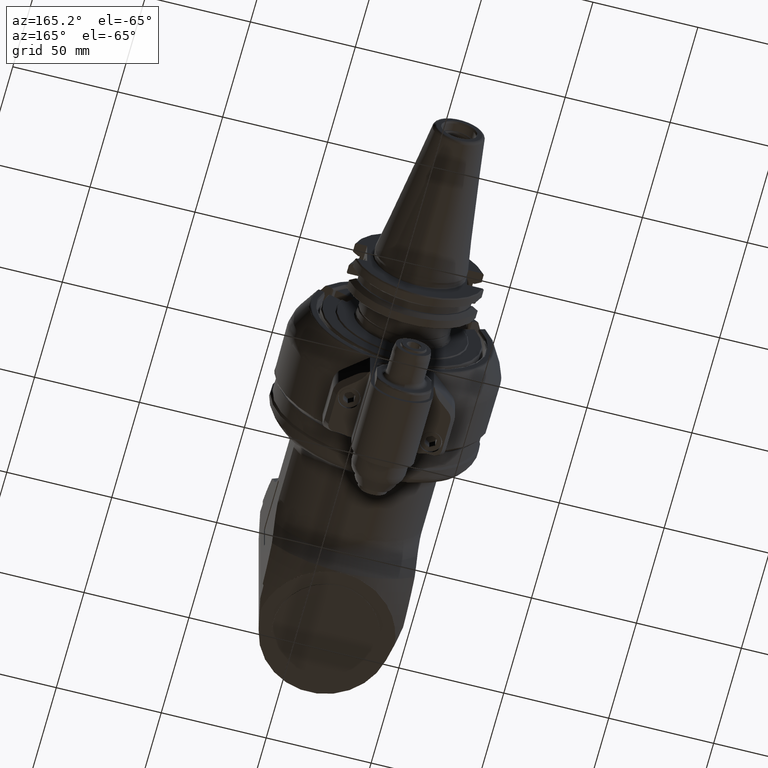
[diagram: clean part render]
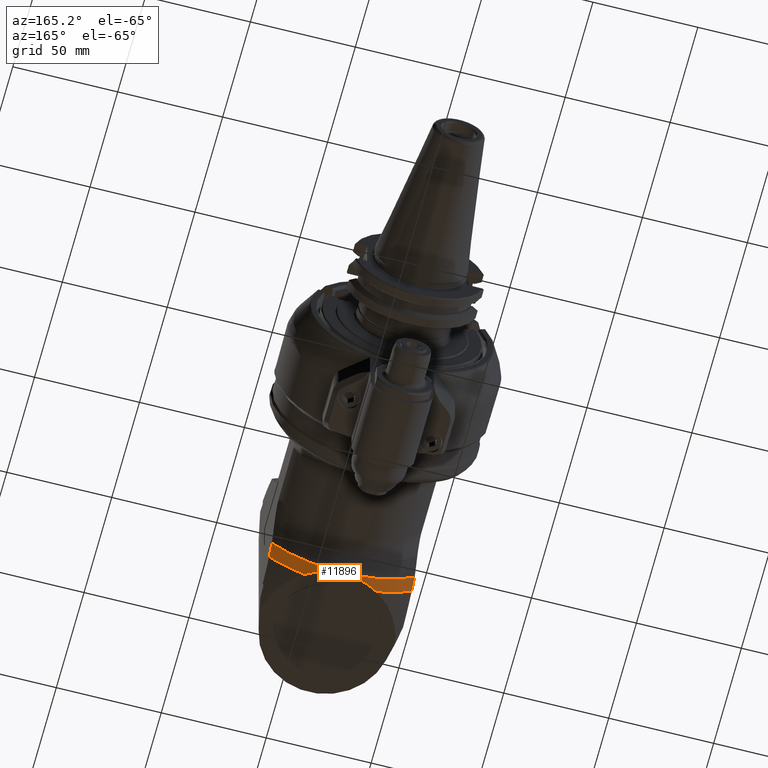
[diagram: same view with one face highlighted and labeled with its STEP entity id]
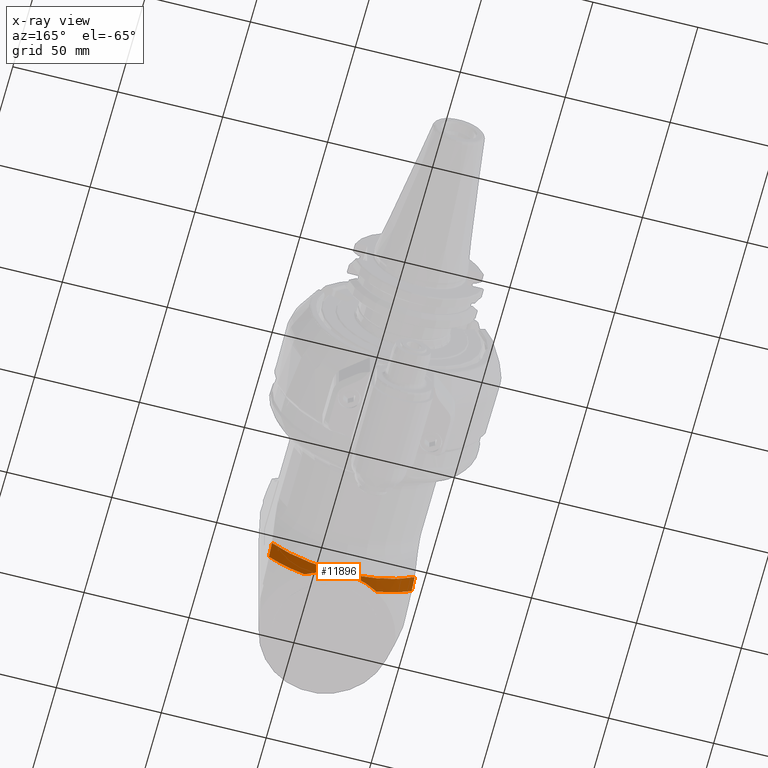
[diagram: x-ray of the same camera — body ghosted, the highlighted face saturated]
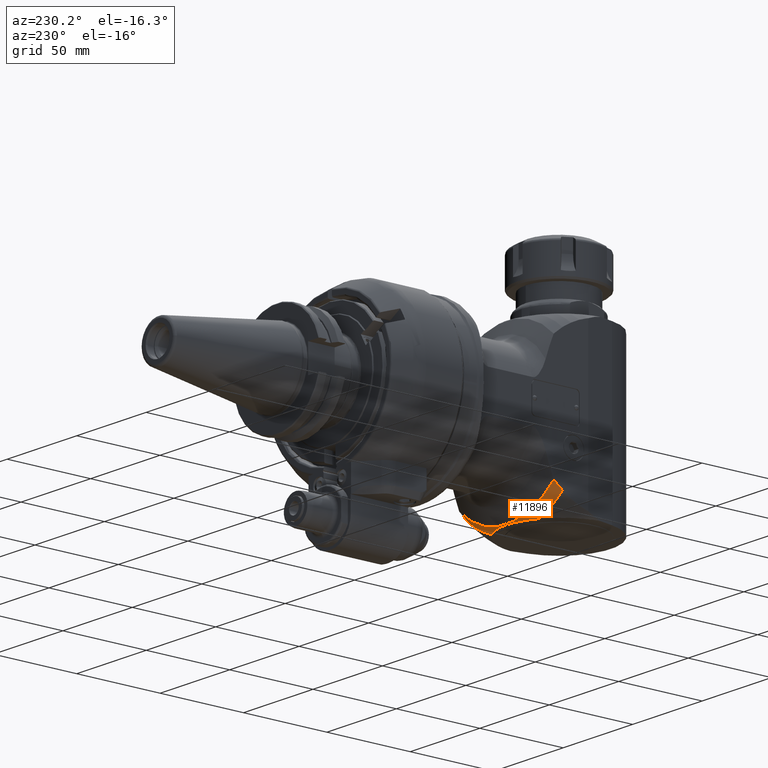
[diagram: same view with one face highlighted and labeled with its STEP entity id]
A machine part, auxiliary view. The second image highlights one B-rep face of the part: STEP entity #11896.
The next image is the same camera in x-ray: the body ghosted, the highlighted face saturated — about 0% of this face is hidden behind the body in this view.
A second angle (auxiliary view) of the same face is appended — the face is thin or edge-on in the first view.
In plain terms, the highlighted conical surface has half-angle 30 deg.
Its self-contained STEP definition (entity closure, byte-faithful):
#65=CONICAL_SURFACE('',#12716,50.36084388501,0.523598775598299);
#239=(
BOUNDED_CURVE()
B_SPLINE_CURVE(2,(#17463,#17464,#17465),.UNSPECIFIED.,.F.,.F.)
B_SPLINE_CURVE_WITH_KNOTS((3,3),(1.03386127366924,1.46542381090931),
 .UNSPECIFIED.)
CURVE()
GEOMETRIC_REPRESENTATION_ITEM()
RATIONAL_B_SPLINE_CURVE((1.11056846276984,1.13179769710168,1.15148416291538))
REPRESENTATION_ITEM('')
);
#267=(
BOUNDED_CURVE()
B_SPLINE_CURVE(2,(#17688,#17689,#17690),.UNSPECIFIED.,.F.,.F.)
B_SPLINE_CURVE_WITH_KNOTS((3,3),(11.7660287057255,12.1804611856225),
 .UNSPECIFIED.)
CURVE()
GEOMETRIC_REPRESENTATION_ITEM()
RATIONAL_B_SPLINE_CURVE((1.12253550208667,1.10334395998691,1.08264843503662))
REPRESENTATION_ITEM('')
);
#351=B_SPLINE_CURVE_WITH_KNOTS('',3,(#17831,#17832,#17833,#17834,#17835),
 .UNSPECIFIED.,.F.,.F.,(4,1,4),(0.,0.5003246250864,1.),.UNSPECIFIED.);
#352=B_SPLINE_CURVE_WITH_KNOTS('',3,(#17840,#17841,#17842,#17843,#17844,
#17845,#17846,#17847,#17848,#17849,#17850,#17851,#17852,#17853,#17854,#17855,
#17856,#17857,#17858,#17859,#17860,#17861,#17862,#17863,#17864,#17865,#17866,
#17867,#17868,#17869,#17870,#17871,#17872,#17873,#17874,#17875,#17876,#17877,
#17878,#17879,#17880,#17881,#17882),.UNSPECIFIED.,.F.,.F.,(4,1,1,1,1,1,
1,1,1,1,1,1,1,1,1,1,1,1,1,1,1,1,1,1,1,1,1,1,1,1,1,1,1,1,1,1,1,1,1,1,4),
(1.91670449904028E-9,0.001589553303491,0.003179047751397,0.003973794975351,
0.004768542199304,0.005563289423257,0.005960663035234,0.006358036647211,
0.006817620944156,0.007277205241101,0.008196373834991,0.009115542428882,
0.01003471102277,0.01187304821055,0.01371138539833,0.02718967805467,0.04066797071101,
0.05414626336735,0.06762455602369,0.08110308886937,0.09458162171505,0.1215386874064,
0.1484953819854,0.1754520765643,0.2024092551703,0.2293664337763,0.2775899441401,
0.3258134545039,0.4222613086703,0.470473646968,0.5186859852657,0.5668959560708,
0.6151065687518,0.6632219989264,0.7113379613195,0.7594531415211,0.8075687216845,
0.8556764979444,0.9037845224649,0.95189221914,1.),.UNSPECIFIED.);
#353=B_SPLINE_CURVE_WITH_KNOTS('',3,(#17883,#17884,#17885,#17886,#17887,
#17888,#17889,#17890,#17891,#17892,#17893,#17894,#17895,#17896,#17897,#17898,
#17899,#17900,#17901,#17902,#17903,#17904,#17905,#17906,#17907),
 .UNSPECIFIED.,.F.,.F.,(4,1,1,1,1,1,1,1,1,1,1,1,1,1,1,1,1,1,1,1,1,1,4),
(0.,0.04841559726253,0.09683110980424,0.145246952288,0.19366254492,0.2420859913843,
0.2905090353212,0.3389328664457,0.3873561619355,0.4358752489412,0.4843936899489,
0.5329145135583,0.5814353371677,0.6785003101045,0.7755644441063,0.8298237706051,
0.8840821228277,0.9112116724125,0.9383412219972,0.9654702881166,0.992599354236,
0.996299677118,1.),.UNSPECIFIED.);
#2795=FACE_OUTER_BOUND('',#3465,.T.);
#3465=EDGE_LOOP('',(#8096,#8097,#8098,#8099,#8100,#8101,#8102,#8103));
#4224=CIRCLE('',#12715,48.83493642406);
#4225=CIRCLE('',#12717,51.88675134595);
#4226=CIRCLE('',#12718,51.88675134595);
#4803=VERTEX_POINT('',#17458);
#4804=VERTEX_POINT('',#17462);
#4858=VERTEX_POINT('',#17683);
#4859=VERTEX_POINT('',#17687);
#4879=VERTEX_POINT('',#17829);
#4880=VERTEX_POINT('',#17830);
#4881=VERTEX_POINT('',#17837);
#4882=VERTEX_POINT('',#17839);
#6091=EDGE_CURVE('',#4804,#4803,#239,.T.);
#6158=EDGE_CURVE('',#4859,#4858,#267,.T.);
#6186=EDGE_CURVE('',#4859,#4803,#4224,.T.);
#6187=EDGE_CURVE('',#4879,#4880,#351,.T.);
#6188=EDGE_CURVE('',#4804,#4880,#4225,.T.);
#6189=EDGE_CURVE('',#4881,#4858,#4226,.T.);
#6190=EDGE_CURVE('',#4881,#4882,#352,.T.);
#6191=EDGE_CURVE('',#4882,#4879,#353,.T.);
#8096=ORIENTED_EDGE('',*,*,#6187,.T.);
#8097=ORIENTED_EDGE('',*,*,#6188,.F.);
#8098=ORIENTED_EDGE('',*,*,#6091,.T.);
#8099=ORIENTED_EDGE('',*,*,#6186,.F.);
#8100=ORIENTED_EDGE('',*,*,#6158,.T.);
#8101=ORIENTED_EDGE('',*,*,#6189,.F.);
#8102=ORIENTED_EDGE('',*,*,#6190,.T.);
#8103=ORIENTED_EDGE('',*,*,#6191,.T.);
#11896=ADVANCED_FACE('',(#2795),#65,.T.);
#12715=AXIS2_PLACEMENT_3D('',#17827,#14084,#14085);
#12716=AXIS2_PLACEMENT_3D('',#17828,#14086,#14087);
#12717=AXIS2_PLACEMENT_3D('',#17836,#14088,#14089);
#12718=AXIS2_PLACEMENT_3D('',#17838,#14090,#14091);
#14084=DIRECTION('center_axis',(-1.,0.,0.));
#14085=DIRECTION('ref_axis',(0.,0.717825677790918,0.696222878325618));
#14086=DIRECTION('center_axis',(1.,0.,0.));
#14087=DIRECTION('ref_axis',(0.,1.,4.69567684027465E-12));
#14088=DIRECTION('center_axis',(1.,0.,0.));
#14089=DIRECTION('ref_axis',(0.,0.755392334798538,-0.655272783295333));
#14090=DIRECTION('center_axis',(1.,0.,0.));
#14091=DIRECTION('ref_axis',(0.,0.944049445837478,0.329803947541492));
#17458=CARTESIAN_POINT('',(246.4733509227,35.05497133849,-34.));
#17462=CARTESIAN_POINT('',(251.759249442685,39.1948334183895,-33.9999999944178));
#17463=CARTESIAN_POINT('Ctrl Pts',(251.759249444294,39.1948334162861,-34.));
#17464=CARTESIAN_POINT('Ctrl Pts',(248.96894026175,37.0621845397854,-34.));
#17465=CARTESIAN_POINT('Ctrl Pts',(246.473350922697,35.0549713384935,-34.));
#17683=CARTESIAN_POINT('',(251.759249442687,39.1948334183914,33.9999999944173));
#17687=CARTESIAN_POINT('',(246.473350922444,35.0549713383488,34.0000000000025));
#17688=CARTESIAN_POINT('Ctrl Pts',(246.473350921874,35.0549713378312,34.));
#17689=CARTESIAN_POINT('Ctrl Pts',(248.968940261291,37.062184539435,34.));
#17690=CARTESIAN_POINT('Ctrl Pts',(251.759249444296,39.1948334162878,34.));
#17827=CARTESIAN_POINT('Origin',(246.4733509227,0.,0.));
#17828=CARTESIAN_POINT('Origin',(249.1163001727,0.,0.));
#17829=CARTESIAN_POINT('',(251.698353613985,48.9818078445406,-17.0108851048865));
#17830=CARTESIAN_POINT('',(251.75924942705,48.9836588556868,-17.1124554207375));
#17831=CARTESIAN_POINT('Ctrl Pts',(251.6983536147,48.98180784337,-17.01088510448));
#17832=CARTESIAN_POINT('Ctrl Pts',(251.7077901747,48.98179924403,-17.02751678136));
#17833=CARTESIAN_POINT('Ctrl Pts',(251.7280760253,48.98243052272,-17.06135448686));
#17834=CARTESIAN_POINT('Ctrl Pts',(251.7490989005,48.98336129571,-17.09553779882));
#17835=CARTESIAN_POINT('Ctrl Pts',(251.7592494284,48.98365885619,-17.11245542167));
#17836=CARTESIAN_POINT('Origin',(251.7592494227,0.,0.));
#17837=CARTESIAN_POINT('',(251.759249529814,48.983661996995,17.1124466078449));
#17838=CARTESIAN_POINT('Origin',(251.7592494227,0.,0.));
#17839=CARTESIAN_POINT('',(246.7360518597,48.98660687987,5.444697760611E-11));
#17840=CARTESIAN_POINT('Ctrl Pts',(251.759249552936,48.9836620152084,17.1124465936643));
#17841=CARTESIAN_POINT('Ctrl Pts',(251.754173097547,48.9835150492601,17.1039804816753));
#17842=CARTESIAN_POINT('Ctrl Pts',(251.743845685222,48.9831502031707,17.086934437331));
#17843=CARTESIAN_POINT('Ctrl Pts',(251.7308290174,48.98261265076,17.06564438861));
#17844=CARTESIAN_POINT('Ctrl Pts',(251.7205515368,48.9822441044,17.04865773781));
#17845=CARTESIAN_POINT('Ctrl Pts',(251.7129603267,48.98201818605,17.03596973423));
#17846=CARTESIAN_POINT('Ctrl Pts',(251.7067751245,48.98189270813,17.02545644719));
#17847=CARTESIAN_POINT('Ctrl Pts',(251.7019320241,48.98183942223,17.01709092527));
#17848=CARTESIAN_POINT('Ctrl Pts',(251.6981834632,48.98183045567,17.0105209294));
#17849=CARTESIAN_POINT('Ctrl Pts',(251.6942863597,48.98183766372,17.00364054572));
#17850=CARTESIAN_POINT('Ctrl Pts',(251.6888320225,48.98184122818,16.99402600952));
#17851=CARTESIAN_POINT('Ctrl Pts',(251.6820219646,48.98184794757,16.98200833234));
#17852=CARTESIAN_POINT('Ctrl Pts',(251.6738525696,48.98185509187,16.96758354765));
#17853=CARTESIAN_POINT('Ctrl Pts',(251.6629671326,48.98186499339,16.94834731546));
#17854=CARTESIAN_POINT('Ctrl Pts',(251.6493720105,48.98187731701,16.92429536348));
#17855=CARTESIAN_POINT('Ctrl Pts',(251.5986846905,48.98192359503,16.83448362377));
#17856=CARTESIAN_POINT('Ctrl Pts',(251.5140158669,48.98200094735,16.68350158099));
#17857=CARTESIAN_POINT('Ctrl Pts',(251.3961515179,48.98210895725,16.47091290709));
#17858=CARTESIAN_POINT('Ctrl Pts',(251.2793324718,48.98221627846,16.25774690665));
#17859=CARTESIAN_POINT('Ctrl Pts',(251.1635723259,48.98232290755,16.04399834778));
#17860=CARTESIAN_POINT('Ctrl Pts',(251.0488876192,48.98242881875,15.82966742844));
#17861=CARTESIAN_POINT('Ctrl Pts',(250.8974320197,48.98256904717,15.54311792585));
#17862=CARTESIAN_POINT('Ctrl Pts',(250.7108833648,48.98274242974,15.18347061318));
#17863=CARTESIAN_POINT('Ctrl Pts',(250.4915909959,48.98294726668,14.74955319997));
#17864=CARTESIAN_POINT('Ctrl Pts',(250.2769978402,48.98314869931,14.31328491589));
#17865=CARTESIAN_POINT('Ctrl Pts',(250.0672406847,48.98334654213,13.87466393179));
#17866=CARTESIAN_POINT('Ctrl Pts',(249.8086066266,48.98359163631,13.31772108911));
#17867=CARTESIAN_POINT('Ctrl Pts',(249.5070261105,48.98387928902,12.63984721881));
#17868=CARTESIAN_POINT('Ctrl Pts',(249.0585769374,48.98431041312,11.57030209064));
#17869=CARTESIAN_POINT('Ctrl Pts',(248.6462925988,48.98471139279,10.48608025346));
#17870=CARTESIAN_POINT('Ctrl Pts',(248.2736543816,48.9850773614,9.38786548892));
#17871=CARTESIAN_POINT('Ctrl Pts',(248.0148968945,48.98533308011,8.557595206987));
#17872=CARTESIAN_POINT('Ctrl Pts',(247.777663309,48.98556888565,7.720840433863));
#17873=CARTESIAN_POINT('Ctrl Pts',(247.5629532113,48.98578343189,6.87862508748));
#17874=CARTESIAN_POINT('Ctrl Pts',(247.3715026824,48.98597565143,6.031376250022));
#17875=CARTESIAN_POINT('Ctrl Pts',(247.2040079723,48.98614451535,5.17963735275));
#17876=CARTESIAN_POINT('Ctrl Pts',(247.0610248761,48.98628924302,4.32342635599));
#17877=CARTESIAN_POINT('Ctrl Pts',(246.943166152,48.98640872699,3.463433662033));
#17878=CARTESIAN_POINT('Ctrl Pts',(246.8509445472,48.98650311701,2.600348084539));
#17879=CARTESIAN_POINT('Ctrl Pts',(246.7847655171,48.98656853411,1.734915056086));
#17880=CARTESIAN_POINT('Ctrl Pts',(246.7449495757,48.98661682613,0.8678644222442));
#17881=CARTESIAN_POINT('Ctrl Pts',(246.7360518597,48.98660687987,0.2892883095284));
#17882=CARTESIAN_POINT('Ctrl Pts',(246.7360518597,48.98660687987,5.444697760611E-11));
#17883=CARTESIAN_POINT('Ctrl Pts',(246.7360518597,48.98660687987,5.444697760611E-11));
#17884=CARTESIAN_POINT('Ctrl Pts',(246.7360518597,48.98660687987,-0.2892886217066));
#17885=CARTESIAN_POINT('Ctrl Pts',(246.744905313,48.98659126832,-0.8678653590124));
#17886=CARTESIAN_POINT('Ctrl Pts',(246.7847390574,48.98655319291,-1.734916927251));
#17887=CARTESIAN_POINT('Ctrl Pts',(246.8509133398,48.98648493979,-2.60035088516));
#17888=CARTESIAN_POINT('Ctrl Pts',(246.9431362491,48.9863911691,-3.463437384845));
#17889=CARTESIAN_POINT('Ctrl Pts',(247.0609946654,48.98627133738,-4.323430991408));
#17890=CARTESIAN_POINT('Ctrl Pts',(247.2039778948,48.98612648115,-5.179642889227));
#17891=CARTESIAN_POINT('Ctrl Pts',(247.371472629,48.98595739138,-6.031382673389));
#17892=CARTESIAN_POINT('Ctrl Pts',(247.5629232194,48.98576493498,-6.878632384704));
#17893=CARTESIAN_POINT('Ctrl Pts',(247.7776333781,48.98555011941,-7.720848582359));
#17894=CARTESIAN_POINT('Ctrl Pts',(248.0148670267,48.98531401963,-8.557604211434));
#17895=CARTESIAN_POINT('Ctrl Pts',(248.2736247473,48.98505798184,-9.387875722678));
#17896=CARTESIAN_POINT('Ctrl Pts',(248.6462626476,48.98469155776,-10.48609057603));
#17897=CARTESIAN_POINT('Ctrl Pts',(249.1616270375,48.98418970302,-11.84139111928));
#17898=CARTESIAN_POINT('Ctrl Pts',(249.7508209796,48.98362454112,-13.20356416531));
#17899=CARTESIAN_POINT('Ctrl Pts',(250.27454984,48.98312873554,-14.31447460084));
#17900=CARTESIAN_POINT('Ctrl Pts',(250.6362357997,48.98278957296,-15.03962872071));
#17901=CARTESIAN_POINT('Ctrl Pts',(250.9347122661,48.98251188771,-15.61506195846));
#17902=CARTESIAN_POINT('Ctrl Pts',(251.1630053283,48.98230032098,-16.04430518878));
#17903=CARTESIAN_POINT('Ctrl Pts',(251.395597066,48.98208685012,-16.47121100883));
#17904=CARTESIAN_POINT('Ctrl Pts',(251.5642219723,48.98193032425,-16.77360676038));
#17905=CARTESIAN_POINT('Ctrl Pts',(251.6656454497,48.98183971595,-16.95317376006));
#17906=CARTESIAN_POINT('Ctrl Pts',(251.6874460973,48.98181779818,-16.99166086348));
#17907=CARTESIAN_POINT('Ctrl Pts',(251.6983536147,48.98180784337,-17.01088510448));